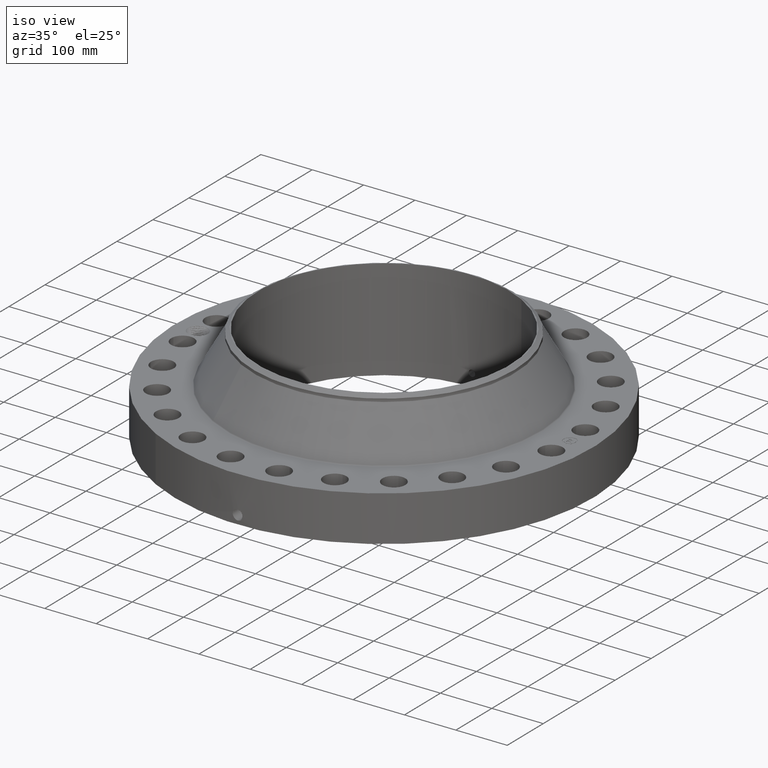
[diagram: clean part render]
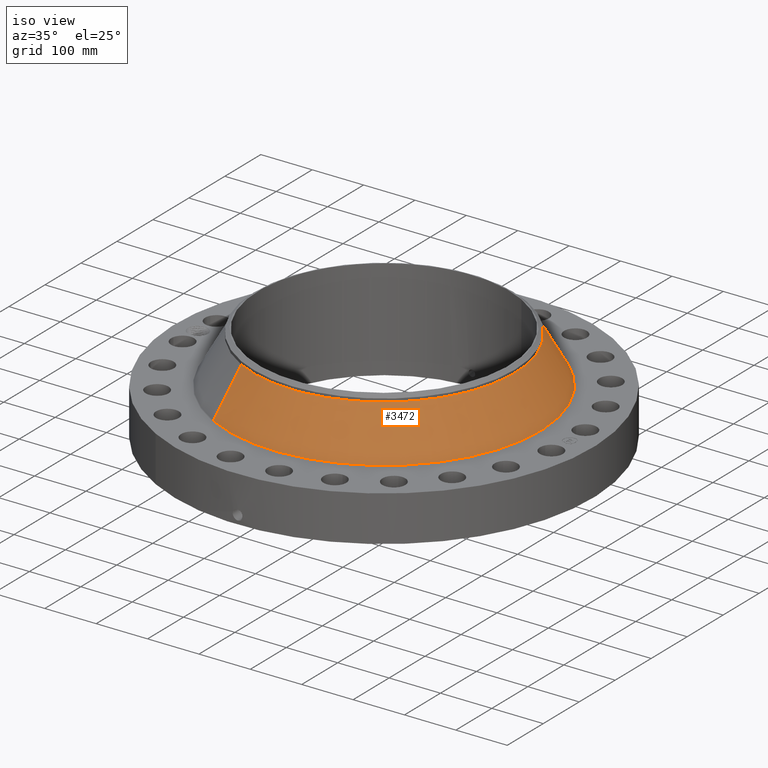
[diagram: same view with one face highlighted and labeled with its STEP entity id]
A machine part, iso view. The second image highlights one B-rep face of the part: STEP entity #3472.
In plain terms, the highlighted conical surface has half-angle 29.49 deg.
Its self-contained STEP definition (entity closure, byte-faithful):
#2833=AXIS2_PLACEMENT_3D('Circle Axis2P3D',#2831,#2832,$) ;
#3445=AXIS2_PLACEMENT_3D('Cone Axis2P3D',#3442,#3443,#3444) ;
#3456=AXIS2_PLACEMENT_3D('Circle Axis2P3D',#3454,#3455,$) ;
#2828=CARTESIAN_POINT('Vertex',(5.73658691231,10.5007519075,3.81092769751)) ;
#2831=CARTESIAN_POINT('Axis2P3D Location',(0.,0.,3.81092769751)) ;
#2835=CARTESIAN_POINT('Vertex',(-5.73658691231,-10.5007519075,3.81092769751)) ;
#3442=CARTESIAN_POINT('Axis2P3D Location',(0.,0.,7.28645135497)) ;
#3447=CARTESIAN_POINT('Line Origine',(5.26542114919,9.63828876323,5.54868952624)) ;
#3451=CARTESIAN_POINT('Vertex',(4.79425538606,8.77582561894,7.28645135497)) ;
#3454=CARTESIAN_POINT('Axis2P3D Location',(0.,0.,7.28645135497)) ;
#3458=CARTESIAN_POINT('Vertex',(-4.79425538606,-8.77582561894,7.28645135497)) ;
#3461=CARTESIAN_POINT('Line Origine',(-5.26542114919,-9.63828876323,5.54868952624)) ;
#2832=DIRECTION('Axis2P3D Direction',(0.,0.,-0.0393700787402)) ;
#3443=DIRECTION('Axis2P3D Direction',(0.,0.,-0.0393700787402)) ;
#3444=DIRECTION('Axis2P3D XDirection',(-0.0188750212049,-0.0345504945626,0.)) ;
#3448=DIRECTION('Vector Direction',(0.00929159135356,0.0170081438879,-0.034269410144)) ;
#3455=DIRECTION('Axis2P3D Direction',(0.,0.,-0.0393700787402)) ;
#3462=DIRECTION('Vector Direction',(-0.00929159135356,-0.0170081438879,-0.034269410144)) ;
#3449=VECTOR('Line Direction',#3448,0.0393700787402) ;
#3463=VECTOR('Line Direction',#3462,0.0393700787402) ;
#3467=ORIENTED_EDGE('',*,*,#2837,.F.) ;
#3468=ORIENTED_EDGE('',*,*,#3453,.T.) ;
#3469=ORIENTED_EDGE('',*,*,#3460,.T.) ;
#3470=ORIENTED_EDGE('',*,*,#3465,.F.) ;
#3472=ADVANCED_FACE('PartBody',(#3471),#3446,.T.) ;
#2834=CIRCLE('generated circle',#2833,11.965543031) ;
#3457=CIRCLE('generated circle',#3456,10.) ;
#3446=CONICAL_SURFACE('Cone',#3445,10.,0.514694771037) ;
#2837=EDGE_CURVE('',#2829,#2836,#2834,.T.) ;
#3453=EDGE_CURVE('',#2829,#3452,#3450,.F.) ;
#3460=EDGE_CURVE('',#3452,#3459,#3457,.T.) ;
#3465=EDGE_CURVE('',#2836,#3459,#3464,.F.) ;
#3466=EDGE_LOOP('',(#3467,#3468,#3469,#3470)) ;
#3471=FACE_OUTER_BOUND('',#3466,.T.) ;
#3450=LINE('Line',#3447,#3449) ;
#3464=LINE('Line',#3461,#3463) ;
#2829=VERTEX_POINT('',#2828) ;
#2836=VERTEX_POINT('',#2835) ;
#3452=VERTEX_POINT('',#3451) ;
#3459=VERTEX_POINT('',#3458) ;